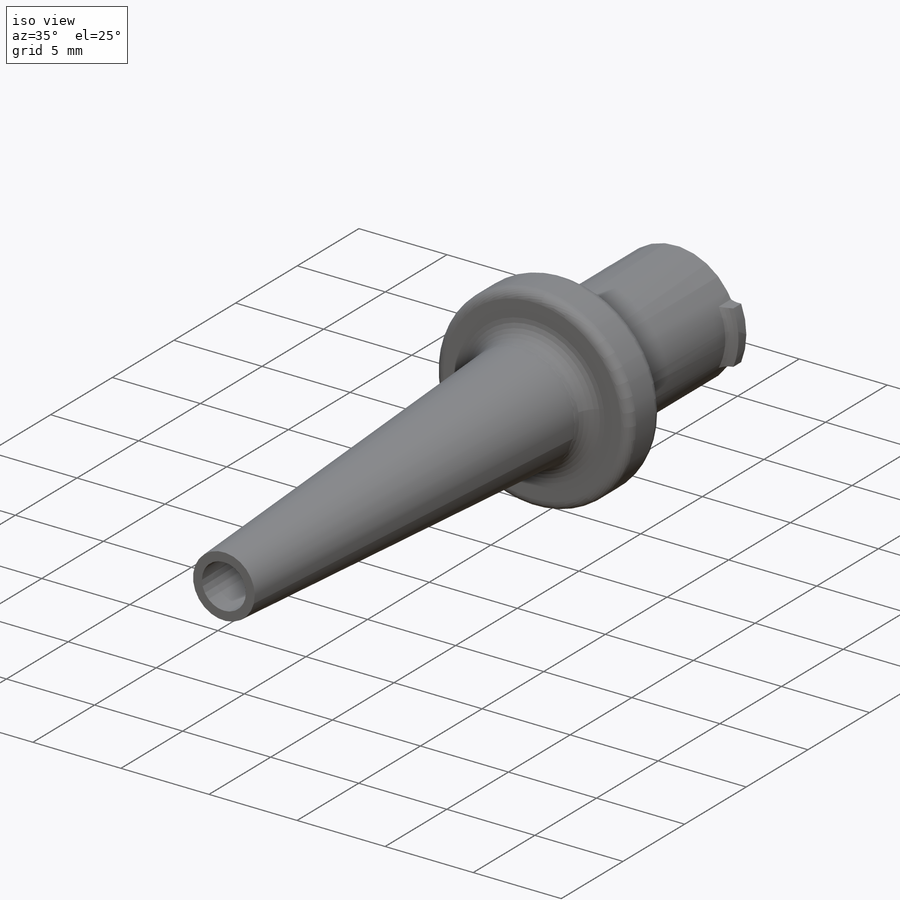
[diagram: iso view]
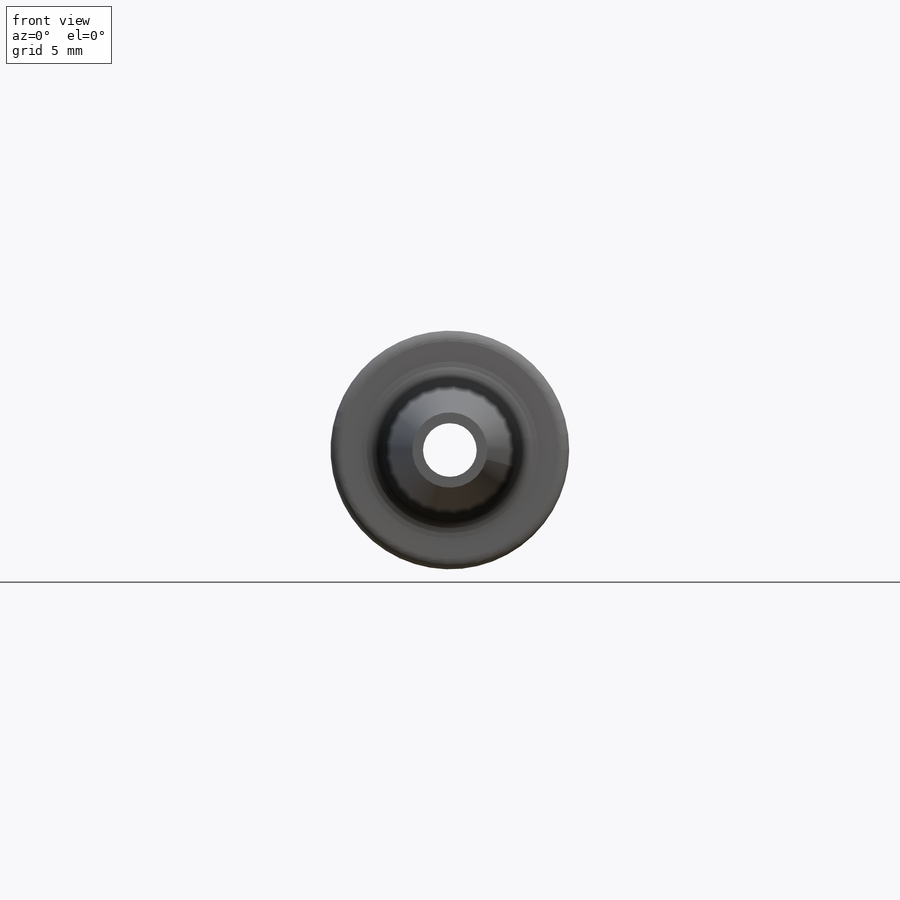
[diagram: front view]
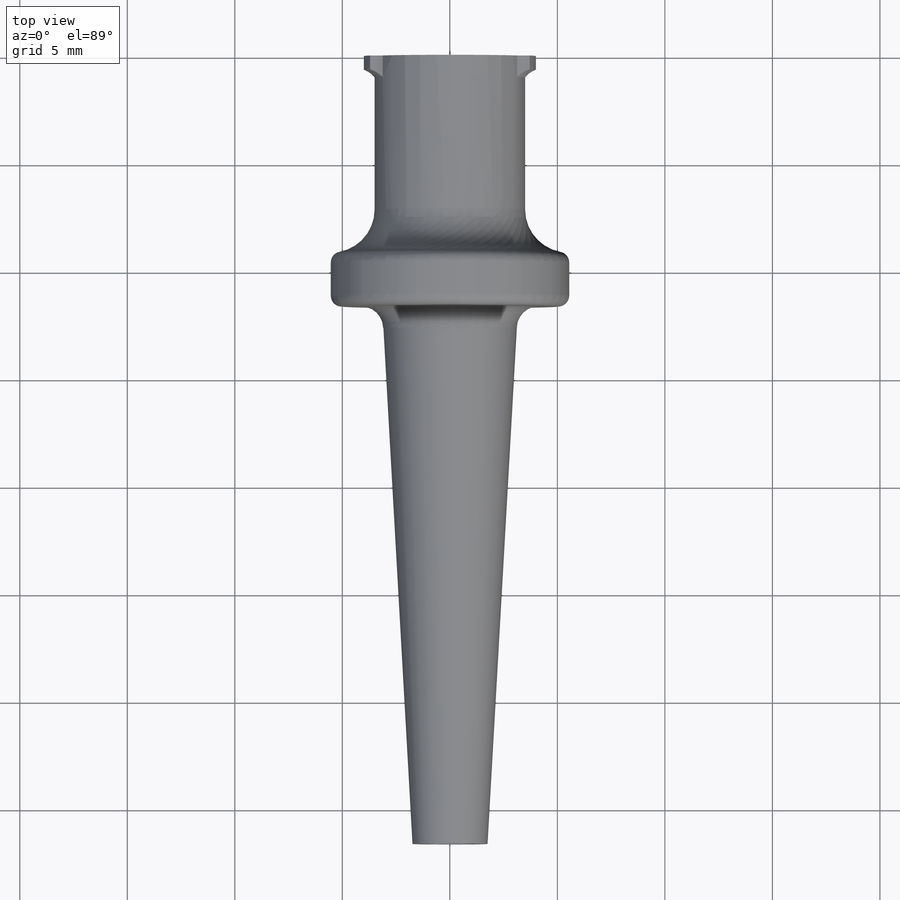
[diagram: top view]
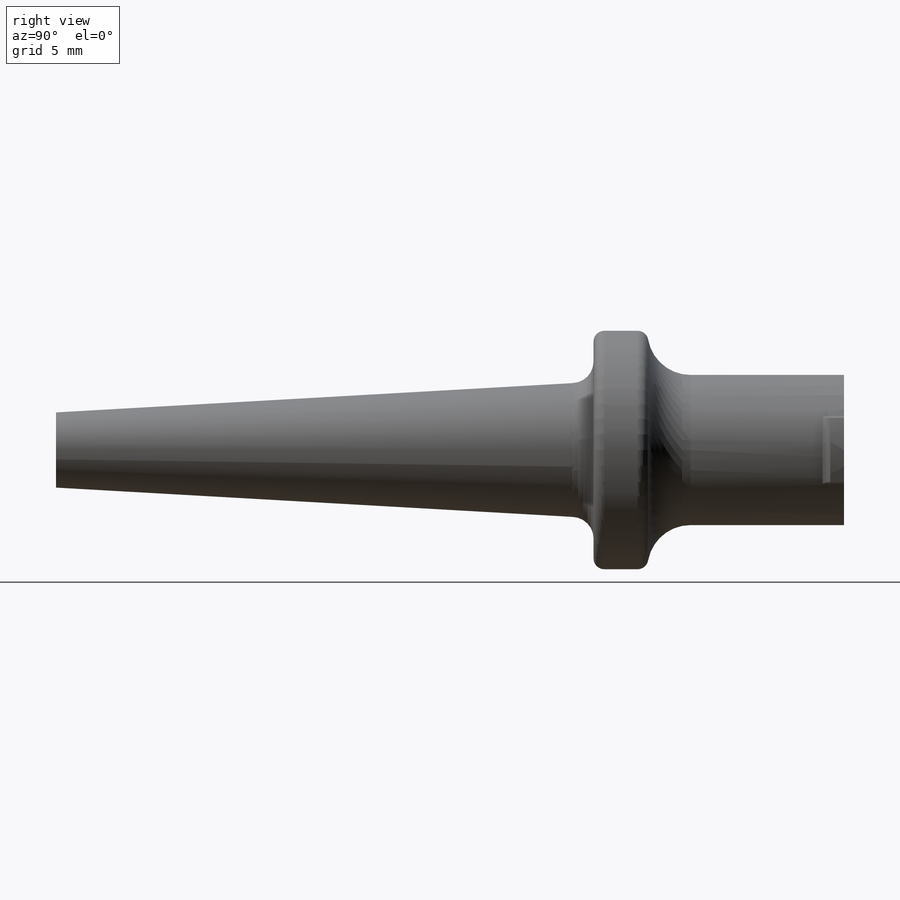
[diagram: right view]
SOLIDWORKS PART (.sldprt)
format: sldprt  version: not decoded by parser v0  size: 877,568 bytes
history: native  units: mm
features: sketch x18, extrude x9, cut_extrude x9, fillet x7, material x1 (+13 scaffold rows collapsed)
feature tree (57):
  scaffold x13  (default folders/planes/origin — collapsed)
  material  "Material <not specified>"
  sketch  "Sketch1"  dims[D5=14.0mm D1=4.0mm D2=4.0mm D3=1.5mm D4=3.0mm]
  extrude  "Boss-Extrude1"  Depth=0.64mm
  sketch  "Sketch2"  dims[D1=~3.378017mm]
  extrude  "Boss-Extrude2"  Depth=9.1mm
  sketch  "Sketch3"  dims[D1=~2.369473mm]
  cut_extrude  "Cut-Extrude2"  Depth=9.1mm
  sketch  "Sketch4"  dims[D1=~5.864858mm]
  extrude  "Boss-Extrude3"  Depth=2.55mm
  sketch  "Sketch8"  dims[D1=~2.987332mm]
  extrude  "Boss-Extrude5"  Depth=25mm
  sketch  "Sketch9"  dims[D1=~3.300763mm]
  extrude  "Boss-Extrude6"  Depth=25mm
  sketch  "Sketch11"  dims[D1=~1.577085mm]
  cut_extrude  "Cut-Extrude7"  Depth=25mm
  fillet  "Fillet6"  Radius=1mm
  fillet  "Fillet7"  Radius=1mm
  fillet  "Fillet8"  Radius=1mm
  fillet  "Fillet10"  Radius=1mm
  fillet  "Fillet11"  Radius=0.5mm
  sketch  "Sketch12"  dims[D1=~2.268606mm]
  cut_extrude  "Cut-Extrude8"  Depth=8mm
  sketch  "Sketch14"  dims[D1=2.2mm]
  cut_extrude  "Cut-Extrude9"  Depth=9.1mm
  sketch  "Sketch15"  dims[D1=~3.744762mm]
  extrude  "Boss-Extrude7"  Depth=9mm
  sketch  "Sketch16"  dims[D1=~2.526191mm]
  cut_extrude  "Cut-Extrude11"  Depth=9mm
  sketch  "Sketch19"  dims[D1=~1.971207mm]
  cut_extrude  "Cut-Extrude12"  Depth=24mm
  sketch  "Sketch20"  dims[D1=~1.697635mm]
  extrude  "Boss-Extrude8"  Depth=24mm
  sketch  "Sketch22"  dims[D1=~1.787763mm]
  cut_extrude  "Cut-Extrude13"  Depth=24mm
  sketch  "Sketch24"
  extrude  "Boss-Extrude9"  Depth=24mm
  sketch  "Sketch25"  dims[D1=~1.077496mm]
  cut_extrude  "Cut-Extrude14"  Depth=24mm
  sketch  "Sketch26"  dims[D1=~3.205034mm]
  extrude  "Boss-Extrude10"  Depth=9.5mm
  fillet  "Fillet12"  Radius=2mm
  sketch  "Sketch28"
  cut_extrude  "Cut-Extrude22"  Depth=4mm
  fillet  "Fillet13"  Radius=2mm
decode coverage: 41 of 43 modeling features carry decoded parameters
note: ~ marks probable driven/reference dimensions
note: suppression state not decoded; provenance and decode notes live in map.json
